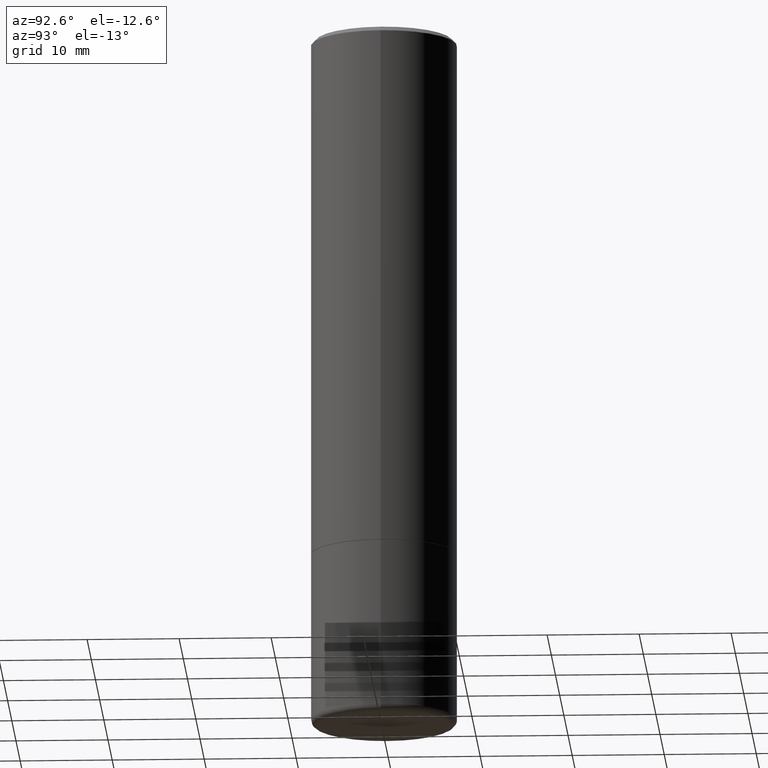
[diagram: clean part render]
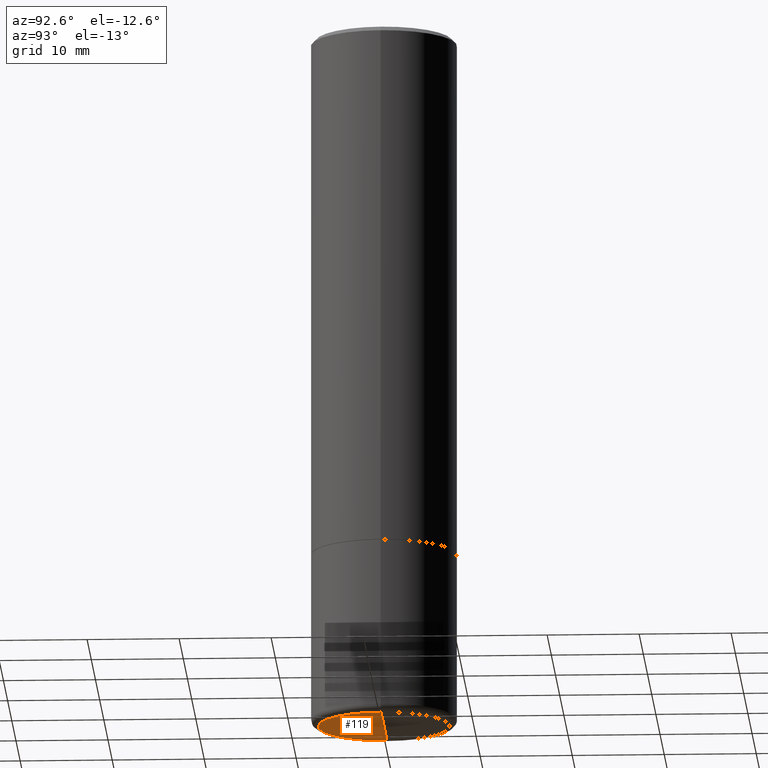
[diagram: same view with one face highlighted and labeled with its STEP entity id]
A machine part, auxiliary view. The second image highlights one B-rep face of the part: STEP entity #119.
In plain terms, the highlighted conical surface has half-angle 89 deg.
Its self-contained STEP definition (entity closure, byte-faithful):
#35 = CARTESIAN_POINT ( 'NONE',  ( 7.324358850716097075E-29, -1.045724328259121687E-14, -2.995073513999098047 ) ) ;
#48 = AXIS2_PLACEMENT_3D ( 'NONE', #325, #133, #365 ) ;
#58 = CARTESIAN_POINT ( 'NONE',  ( 7.324358850716097075E-29, -1.045724328259121687E-14, -2.995073513999098047 ) ) ;
#65 = VERTEX_POINT ( 'NONE', #273 ) ;
#79 = EDGE_CURVE ( 'NONE', #128, #65, #339, .T. ) ;
#82 = CARTESIAN_POINT ( 'NONE',  ( 0.2819764278068823682, -1.240892678183174612E-14, -2.999995430854692113 ) ) ;
#89 = VECTOR ( 'NONE', #404, 39.37007874015747433 ) ;
#103 = EDGE_LOOP ( 'NONE', ( #437, #302, #361 ) ) ;
#119 = ADVANCED_FACE ( 'NONE', ( #200 ), #338, .F. ) ;
#120 = CIRCLE ( 'NONE', #253, 0.2819764278068817576 ) ;
#128 = VERTEX_POINT ( 'NONE', #58 ) ;
#133 = DIRECTION ( 'NONE',  ( 2.445468806185136597E-29, -3.491481338843145583E-15, -1.000000000000000000 ) ) ;
#156 = VECTOR ( 'NONE', #413, 39.37007874015747433 ) ;
#161 = DIRECTION ( 'NONE',  ( -2.445468806185136597E-29, 3.491481338843145583E-15, 1.000000000000000000 ) ) ;
#198 = DIRECTION ( 'NONE',  ( 1.000000000000000000, -6.982962677686267499E-15, 0.000000000000000000 ) ) ;
#200 = FACE_OUTER_BOUND ( 'NONE', #103, .T. ) ;
#225 = EDGE_CURVE ( 'NONE', #128, #268, #378, .T. ) ;
#240 = CARTESIAN_POINT ( 'NONE',  ( 7.324358850716097075E-29, -1.045724328259121687E-14, -2.995073513999098047 ) ) ;
#253 = AXIS2_PLACEMENT_3D ( 'NONE', #288, #161, #198 ) ;
#268 = VERTEX_POINT ( 'NONE', #82 ) ;
#273 = CARTESIAN_POINT ( 'NONE',  ( -0.2819764278068823682, -8.505397192081103649E-15, -2.999995430854692113 ) ) ;
#288 = CARTESIAN_POINT ( 'NONE',  ( 7.336395244853088111E-29, -1.047442806344385870E-14, -2.999995430854692113 ) ) ;
#302 = ORIENTED_EDGE ( 'NONE', *, *, #225, .T. ) ;
#325 = CARTESIAN_POINT ( 'NONE',  ( 1.036026583068238342E-27, -1.479171385126363369E-13, -42.36515225415657682 ) ) ;
#338 = CONICAL_SURFACE ( 'NONE', #48, 2255.510300424564321, 1.553343034274960788 ) ;
#339 = LINE ( 'NONE', #35, #156 ) ;
#361 = ORIENTED_EDGE ( 'NONE', *, *, #393, .F. ) ;
#365 = DIRECTION ( 'NONE',  ( -1.000000000000000000, 6.982962677686266711E-15, 0.000000000000000000 ) ) ;
#378 = LINE ( 'NONE', #240, #89 ) ;
#393 = EDGE_CURVE ( 'NONE', #65, #268, #120, .T. ) ;
#404 = DIRECTION ( 'NONE',  ( 0.9998476951563914916, -6.920387862090559512E-15, -0.01745240643727605234 ) ) ;
#413 = DIRECTION ( 'NONE',  ( -0.9998476951563914916, 6.920964387254063099E-15, -0.01745240643727605234 ) ) ;
#437 = ORIENTED_EDGE ( 'NONE', *, *, #79, .F. ) ;